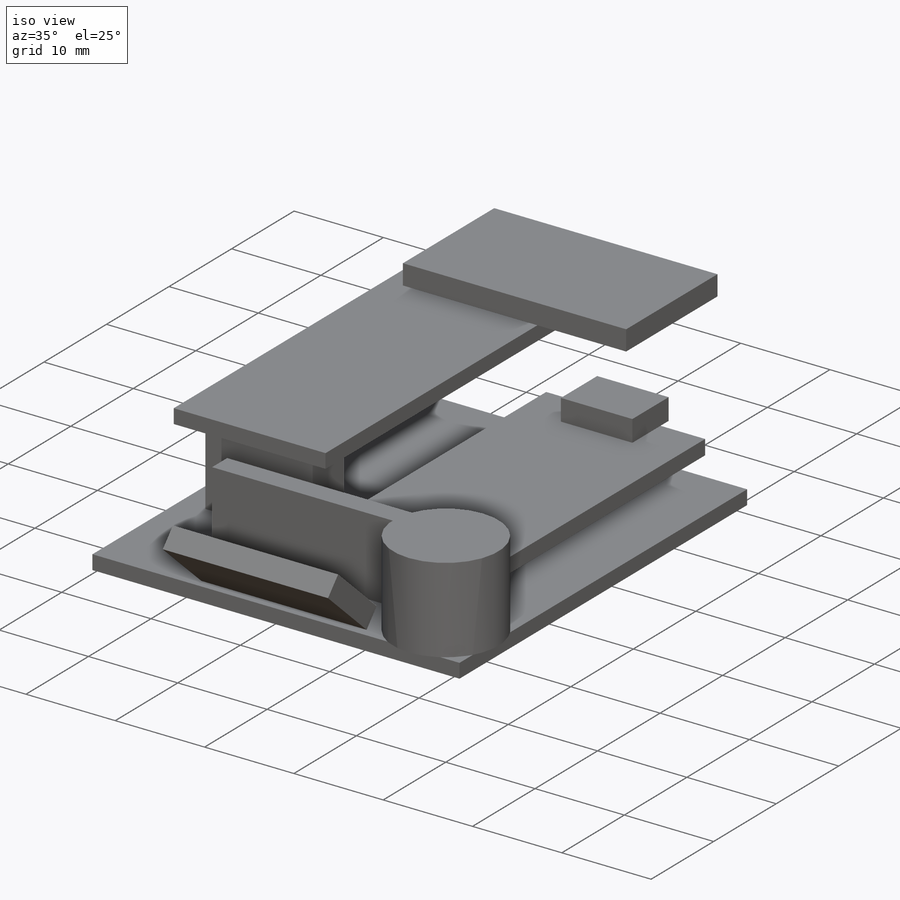
[diagram: iso view]
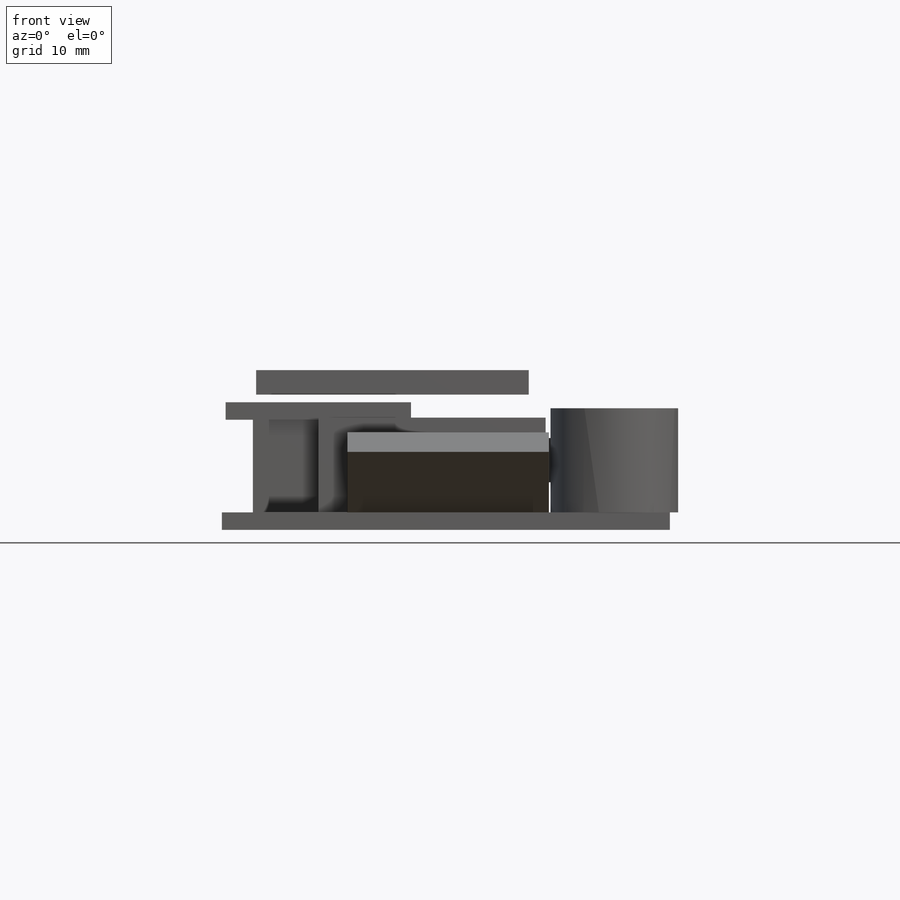
[diagram: front view]
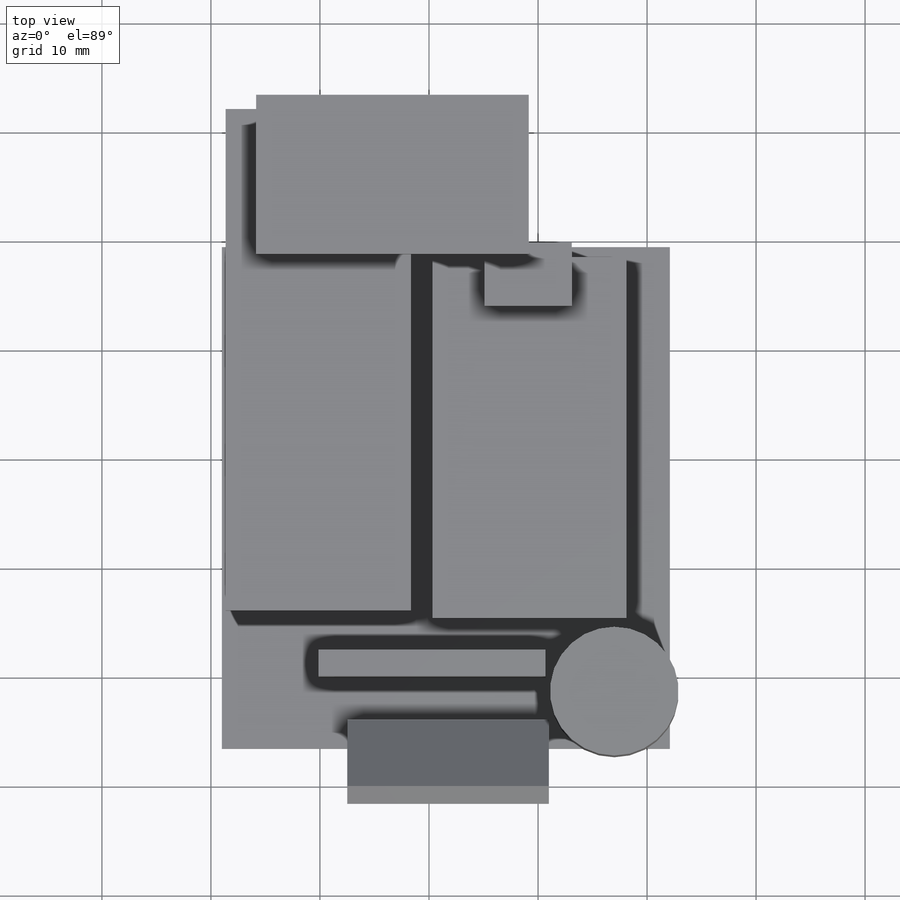
[diagram: top view]
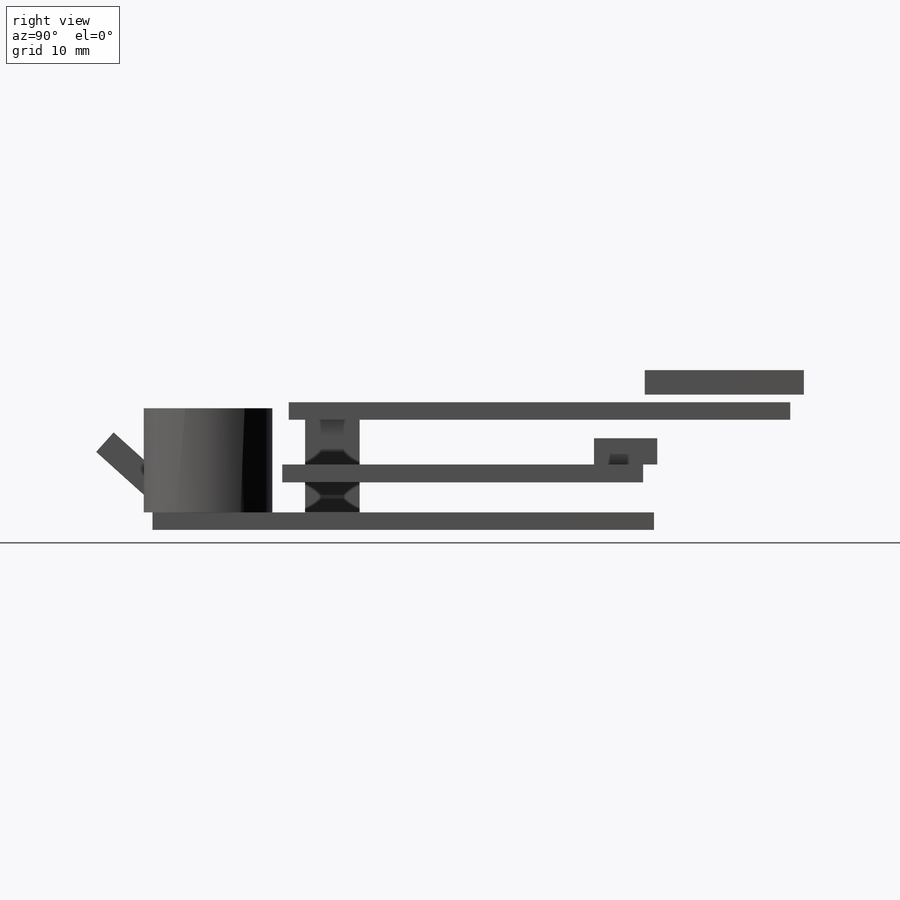
[diagram: right view]
SOLIDWORKS PART (.sldprt)
format: sldprt  version: not decoded by parser v0  size: 301,056 bytes
history: native  units: mm
features: sketch x9, extrude x9, material x1 (+12 scaffold rows collapsed)
feature tree (31):
  scaffold x12  (default folders/planes/origin — collapsed)
  material  "Material <not specified>"
  sketch  "Sketch1"  dims[c1.D1=~41.239347mm c1.D2=~48.755878mm c2.D1=46.0mm c2.D2=41.1mm]
  extrude  "Boss-Extrude1"  Depth=1.6mm
  sketch  "Sketch2"  dims[D1=11.8mm D2=5.1mm D3=5.1mm]
  extrude  "Boss-Extrude2"  Depth=9.55mm
  sketch  "Sketch3"  dims[c1.D1=~26.283319mm c1.D2=~15.580661mm c2.D1=17.8mm c2.D2=33.1mm c2.D3=4.0mm c2.D4=1.0mm]
  extrude  "Boss-Extrude3"  Depth=1.65mm
  sketch  "Sketch4"  dims[c1.D1=~5.423899mm c1.D2=7.4869mm c2.D1=8.0mm c2.D2=5.8mm c2.D3=1.3mm c2.D4=5.0mm]
  extrude  "Boss-Extrude4"  Depth=2.4mm
  sketch  "Sketch5"  dims[c1.D1=~6.702388mm c1.D2=~8.991151mm c2.D1=12.0mm c2.D2=5.0mm c2.D3=14.0mm c2.D4=2.85mm]
  extrude  "Boss-Extrude5"  Depth=8.5mm
  sketch  "Sketch7"  dims[c1.D1=~3.26212mm c1.D2=~19.070641mm c2.D1=2.4mm c2.D2=20.85mm c2.D3=8.85mm c2.D4=6.5mm]
  extrude  "Boss-Extrude7"  Depth=8.7mm
  sketch  "Sketch8"  dims[c1.D1=2.4mm c1.D2=8.3mm c1.D3=1.0mm c1.D4=46.0mm c2.D4=42.0deg]
  extrude  "Boss-Extrude8"  Depth=18.5mm
  sketch  "Sketch9"  dims[c1.D1=~37.130619mm c1.D2=~16.971318mm c2.D1=17.0mm c2.D2=46.0mm c2.D3=2.5mm c2.D4=1.5mm]
  extrude  "Boss-Extrude10"  Depth=1.6mm
  sketch  "Sketch6"  dims[c1.D1=~23.255935mm c1.D2=~17.81994mm c2.D1=25.0mm c2.D2=14.6mm c2.D3=1.3mm c2.D4=1.3mm c2.D5=0.8mm c3.D3=1.25mm c3.D4=2.8mm]
  extrude  "Boss-Extrude11"  Depth=2.25mm
decode coverage: 18 of 18 modeling features carry decoded parameters
note: ~ marks probable driven/reference dimensions
note: suppression state not decoded; provenance and decode notes live in map.json
